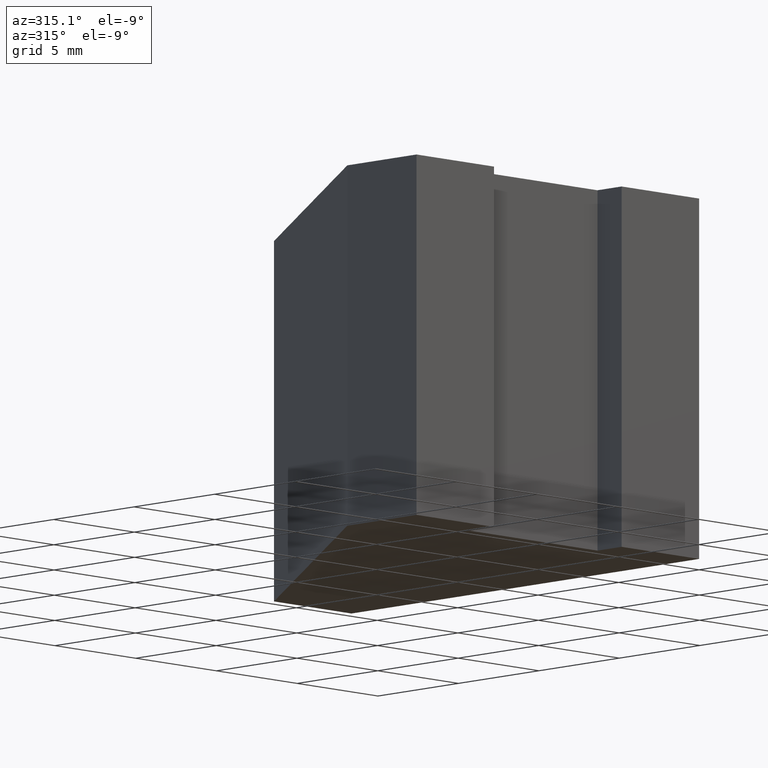
[diagram: clean part render]
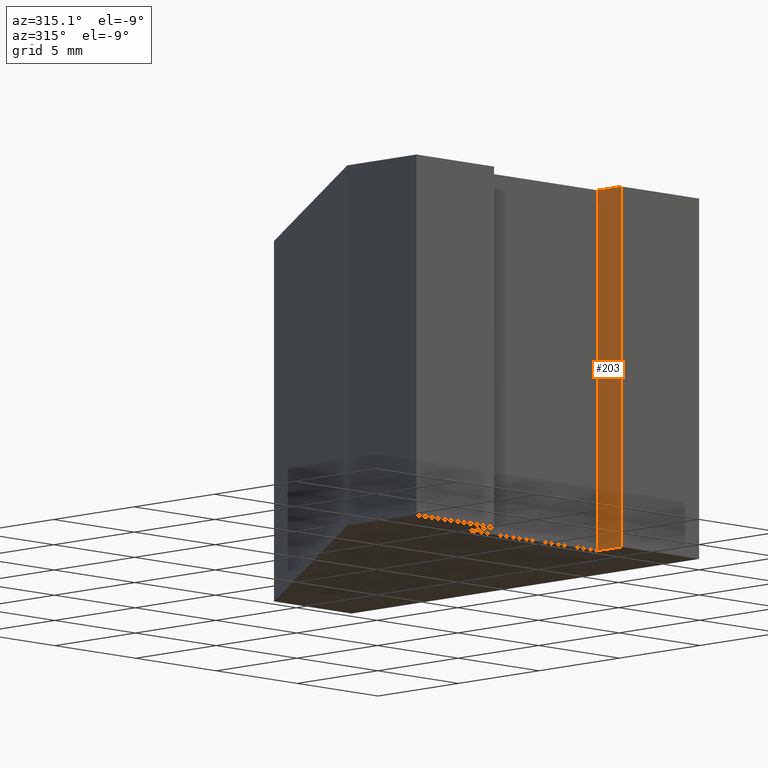
[diagram: same view with one face highlighted and labeled with its STEP entity id]
A machine part, auxiliary view. The second image highlights one B-rep face of the part: STEP entity #203.
In plain terms, the highlighted planar face has unit normal (-1, 0, 0).
Its self-contained STEP definition (entity closure, byte-faithful):
#17=FACE_OUTER_BOUND('',#28,.T.);
#28=EDGE_LOOP('',(#146,#147,#148,#149));
#40=LINE('',#306,#67);
#47=LINE('',#321,#74);
#48=LINE('',#322,#75);
#49=LINE('',#323,#76);
#67=VECTOR('',#253,10.);
#74=VECTOR('',#262,10.);
#75=VECTOR('',#263,10.);
#76=VECTOR('',#264,10.);
#94=VERTEX_POINT('',#303);
#95=VERTEX_POINT('',#305);
#101=VERTEX_POINT('',#319);
#102=VERTEX_POINT('',#320);
#112=EDGE_CURVE('',#95,#94,#40,.T.);
#119=EDGE_CURVE('',#101,#102,#47,.T.);
#120=EDGE_CURVE('',#102,#95,#48,.T.);
#121=EDGE_CURVE('',#101,#94,#49,.T.);
#146=ORIENTED_EDGE('',*,*,#119,.T.);
#147=ORIENTED_EDGE('',*,*,#120,.T.);
#148=ORIENTED_EDGE('',*,*,#112,.T.);
#149=ORIENTED_EDGE('',*,*,#121,.F.);
#192=PLANE('',#237);
#203=ADVANCED_FACE('',(#17),#192,.T.);
#237=AXIS2_PLACEMENT_3D('',#318,#260,#261);
#253=DIRECTION('',(0.,-1.,0.));
#260=DIRECTION('center_axis',(-1.,0.,0.));
#261=DIRECTION('ref_axis',(0.,0.,1.));
#262=DIRECTION('',(0.,1.,0.));
#263=DIRECTION('',(0.,0.,-1.));
#264=DIRECTION('',(0.,0.,-1.));
#303=CARTESIAN_POINT('',(-4.8,-1.38777878078145E-16,-8.));
#305=CARTESIAN_POINT('',(-4.8,1.5,-8.));
#306=CARTESIAN_POINT('',(-4.8,-1.38777878078145E-16,-8.));
#318=CARTESIAN_POINT('Origin',(-4.8,-1.38777878078145E-16,0.));
#319=CARTESIAN_POINT('',(-4.8,-1.38777878078145E-16,8.));
#320=CARTESIAN_POINT('',(-4.8,1.5,8.));
#321=CARTESIAN_POINT('',(-4.8,-1.38777878078145E-16,8.));
#322=CARTESIAN_POINT('',(-4.8,1.5,0.));
#323=CARTESIAN_POINT('',(-4.8,-1.38777878078145E-16,0.));